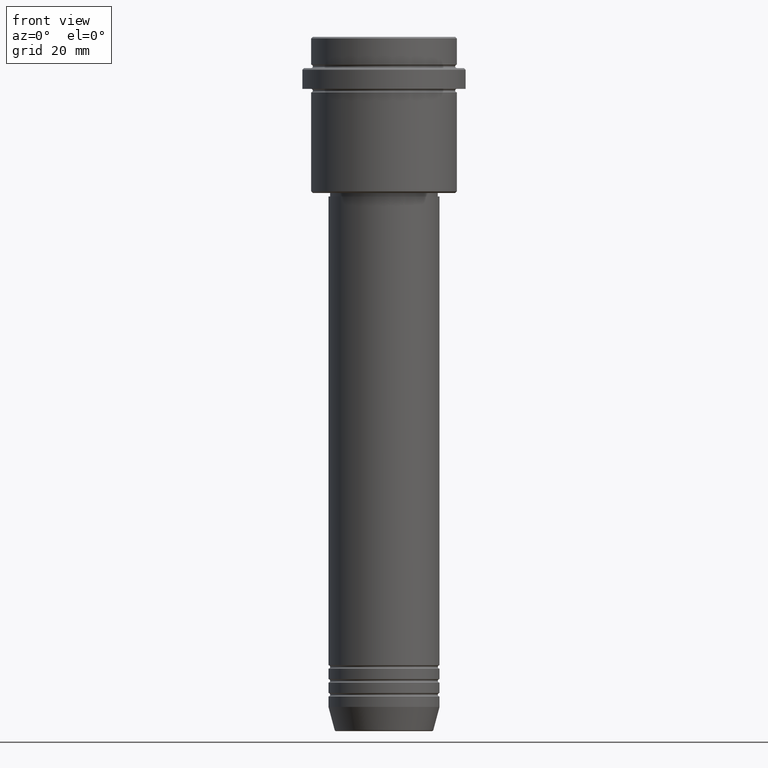
[diagram: clean part render]
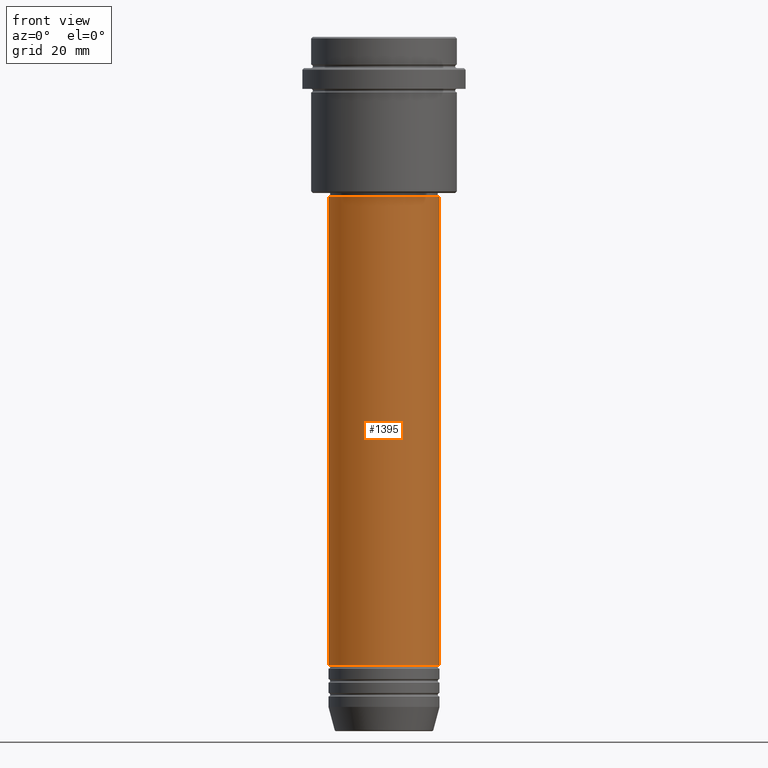
[diagram: same view with one face highlighted and labeled with its STEP entity id]
A machine part, front view. The second image highlights one B-rep face of the part: STEP entity #1395.
In plain terms, the highlighted cylindrical surface (partial cylindrical patch) has radius 16 mm, axis along (-0, -0, 1).
Its self-contained STEP definition (entity closure, byte-faithful):
#17 = EDGE_CURVE ( 'NONE', #313, #854, #1094, .T. ) ;
#55 = VECTOR ( 'NONE', #1204, 1000.000000000000000 ) ;
#71 = CARTESIAN_POINT ( 'NONE',  ( 0.000000000000000000, 0.000000000000000000, -180.9999999999998863 ) ) ;
#123 = EDGE_CURVE ( 'NONE', #237, #1159, #549, .T. ) ;
#143 = CARTESIAN_POINT ( 'NONE',  ( 16.00000000000000355, 0.000000000000000000, -46.00000000000001421 ) ) ;
#155 = DIRECTION ( 'NONE',  ( -0.000000000000000000, -0.000000000000000000, 1.000000000000000000 ) ) ;
#224 = CYLINDRICAL_SURFACE ( 'NONE', #516, 16.00000000000000000 ) ;
#237 = VERTEX_POINT ( 'NONE', #1213 ) ;
#313 = VERTEX_POINT ( 'NONE', #1396 ) ;
#319 = DIRECTION ( 'NONE',  ( 1.000000000000000000, 0.000000000000000000, 0.000000000000000000 ) ) ;
#424 = FACE_OUTER_BOUND ( 'NONE', #1414, .T. ) ;
#476 = CARTESIAN_POINT ( 'NONE',  ( 0.000000000000000000, 0.000000000000000000, -46.00000000000001421 ) ) ;
#516 = AXIS2_PLACEMENT_3D ( 'NONE', #1194, #956, #966 ) ;
#526 = ORIENTED_EDGE ( 'NONE', *, *, #123, .T. ) ;
#549 = LINE ( 'NONE', #1229, #55 ) ;
#555 = EDGE_CURVE ( 'NONE', #313, #237, #1405, .T. ) ;
#788 = CIRCLE ( 'NONE', #983, 16.00000000000000355 ) ;
#800 = AXIS2_PLACEMENT_3D ( 'NONE', #71, #925, #319 ) ;
#854 = VERTEX_POINT ( 'NONE', #1053 ) ;
#925 = DIRECTION ( 'NONE',  ( -0.000000000000000000, -0.000000000000000000, 1.000000000000000000 ) ) ;
#956 = DIRECTION ( 'NONE',  ( -0.000000000000000000, -0.000000000000000000, 1.000000000000000000 ) ) ;
#966 = DIRECTION ( 'NONE',  ( 1.000000000000000000, 0.000000000000000000, 0.000000000000000000 ) ) ;
#976 = VECTOR ( 'NONE', #981, 1000.000000000000000 ) ;
#981 = DIRECTION ( 'NONE',  ( -0.000000000000000000, -0.000000000000000000, 1.000000000000000000 ) ) ;
#983 = AXIS2_PLACEMENT_3D ( 'NONE', #476, #155, #1357 ) ;
#1053 = CARTESIAN_POINT ( 'NONE',  ( -16.00000000000000355, 1.959434878635765526E-15, -46.00000000000001421 ) ) ;
#1085 = ORIENTED_EDGE ( 'NONE', *, *, #555, .T. ) ;
#1094 = LINE ( 'NONE', #1305, #976 ) ;
#1113 = EDGE_CURVE ( 'NONE', #854, #1159, #788, .T. ) ;
#1159 = VERTEX_POINT ( 'NONE', #143 ) ;
#1184 = ORIENTED_EDGE ( 'NONE', *, *, #1113, .F. ) ;
#1194 = CARTESIAN_POINT ( 'NONE',  ( 0.000000000000000000, 0.000000000000000000, 0.000000000000000000 ) ) ;
#1204 = DIRECTION ( 'NONE',  ( -0.000000000000000000, -0.000000000000000000, 1.000000000000000000 ) ) ;
#1213 = CARTESIAN_POINT ( 'NONE',  ( 16.00000000000000000, 0.000000000000000000, -180.9999999999998863 ) ) ;
#1229 = CARTESIAN_POINT ( 'NONE',  ( 16.00000000000000000, 0.000000000000000000, 0.000000000000000000 ) ) ;
#1305 = CARTESIAN_POINT ( 'NONE',  ( -16.00000000000000000, 1.959434878635765131E-15, 0.000000000000000000 ) ) ;
#1357 = DIRECTION ( 'NONE',  ( 1.000000000000000000, 0.000000000000000000, 0.000000000000000000 ) ) ;
#1395 = ADVANCED_FACE ( 'NONE', ( #424 ), #224, .T. ) ;
#1396 = CARTESIAN_POINT ( 'NONE',  ( -16.00000000000000000, 1.959434878635765131E-15, -180.9999999999998863 ) ) ;
#1403 = ORIENTED_EDGE ( 'NONE', *, *, #17, .F. ) ;
#1405 = CIRCLE ( 'NONE', #800, 16.00000000000000000 ) ;
#1414 = EDGE_LOOP ( 'NONE', ( #1403, #1085, #526, #1184 ) ) ;